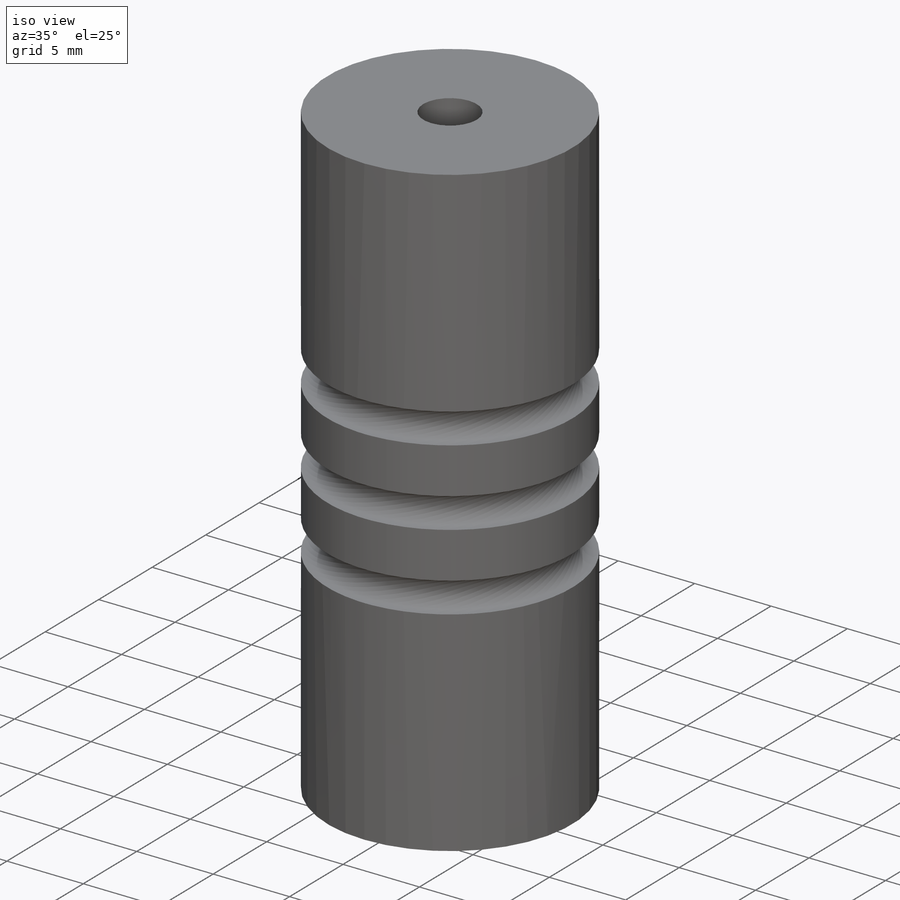
[diagram: iso view]
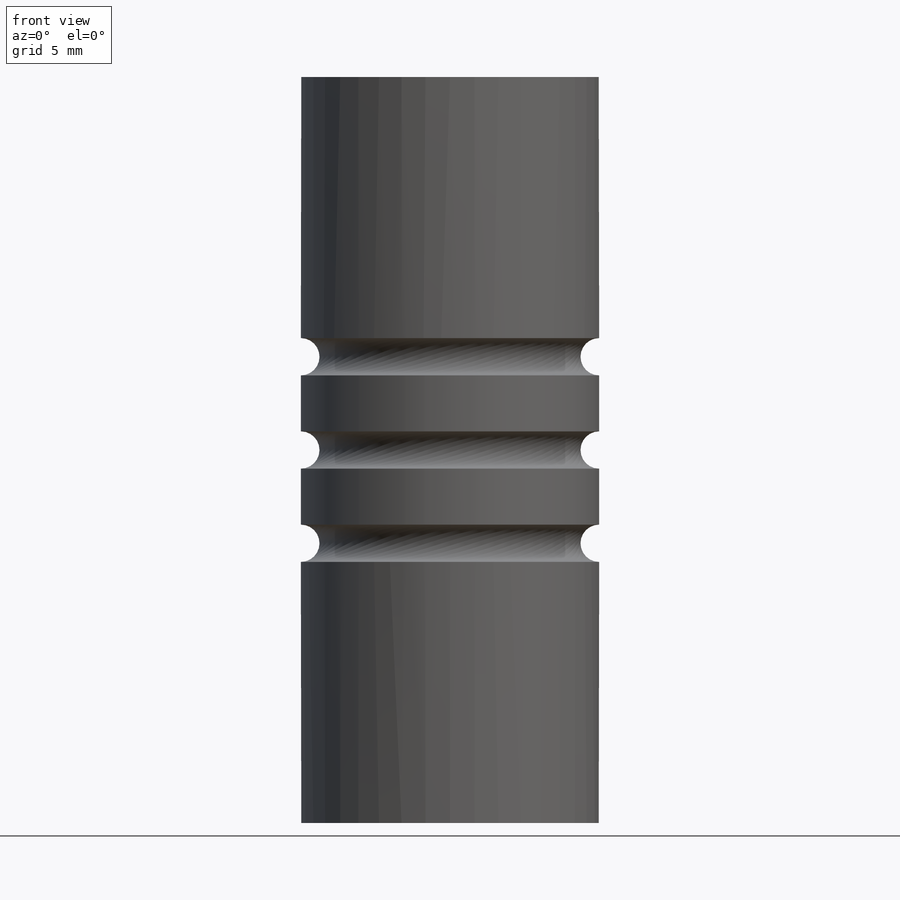
[diagram: front view]
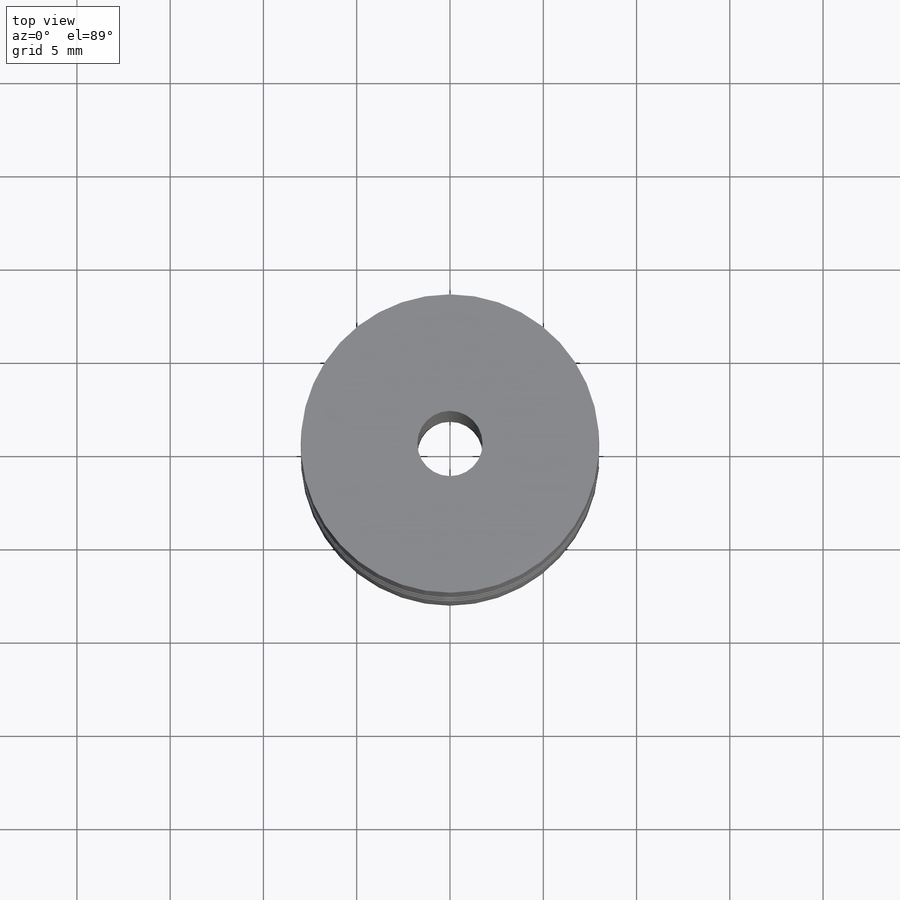
[diagram: top view]
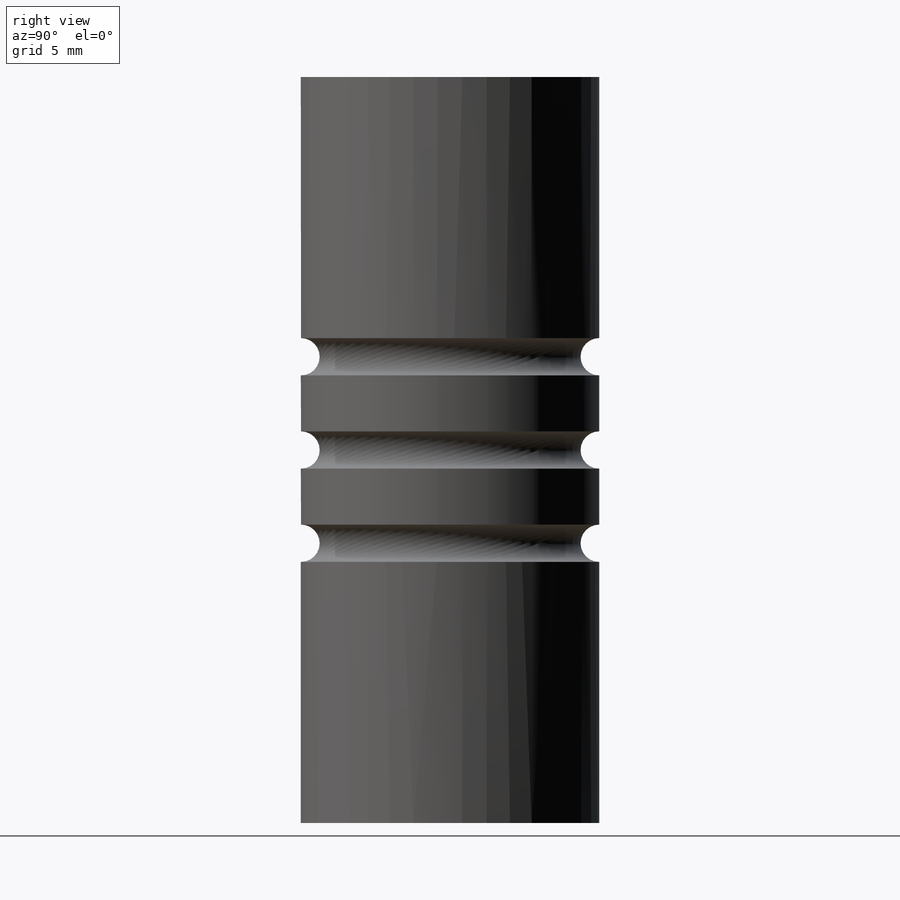
[diagram: right view]
SOLIDWORKS PART (.sldprt)
format: sldprt  version: not decoded by parser v0  size: 198,656 bytes
history: native  units: mm
features: sketch x5, cut_extrude x2, material x1, extrude x1, plane x1, sweep x1 (+16 scaffold rows collapsed)
feature tree (27):
  scaffold x16  (default folders/planes/origin — collapsed)
  material  "Material <not specified>"
  sketch  "Sketch1"  dims[D1=~20.070796mm]
  extrude  "Extrude1"  Depth=40mm
  sketch  "Sketch2"  dims[D1=~2.016389mm]
  cut_extrude  "Extrude2"  Depth=40mm
  sketch  "Sketch3"  dims[D1=8.0mm]
  cut_extrude  "Extrude3"  Depth=6.35mm
  sketch  "Sketch4"  dims[D1=~1.264645mm]
  plane  "Plane1"  Offset=15mm
  sketch  "Sketch6"
  sweep  "Cut-Sweep1"
decode coverage: 7 of 9 modeling features carry decoded parameters
note: ~ marks probable driven/reference dimensions
note: suppression state not decoded; provenance and decode notes live in map.json
